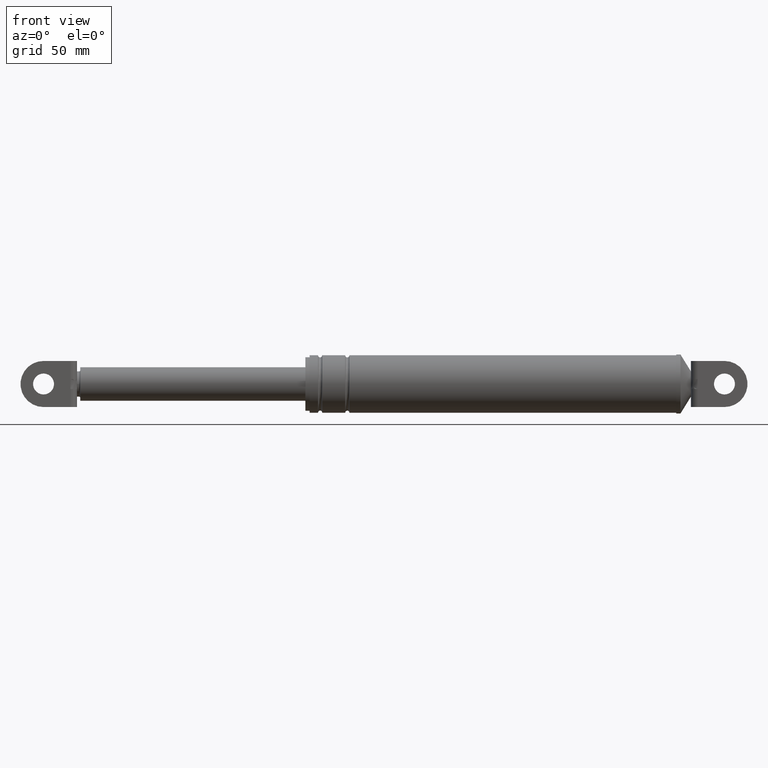
[diagram: clean part render]
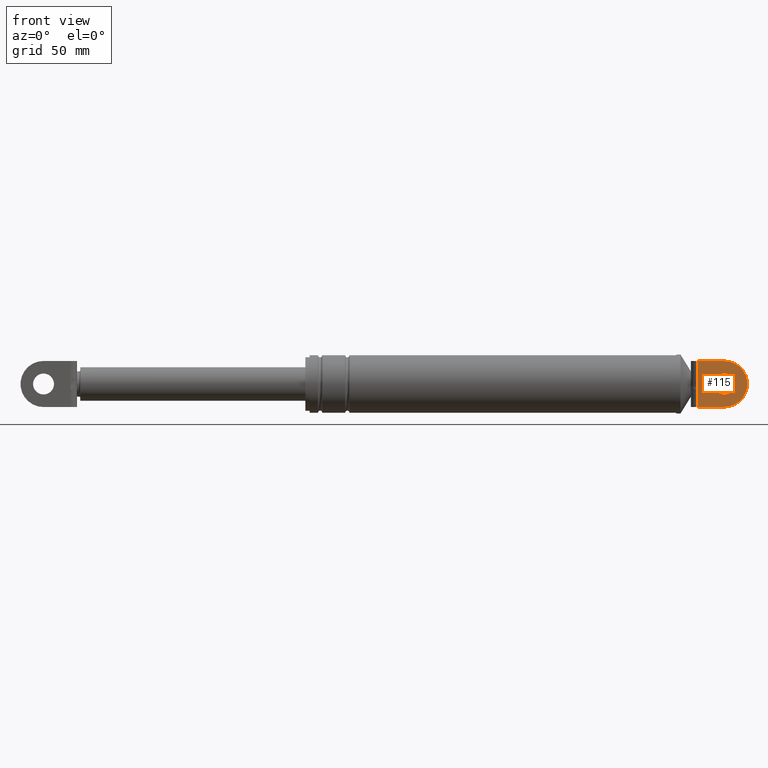
[diagram: same view with one face highlighted and labeled with its STEP entity id]
A machine part, front view. The second image highlights one B-rep face of the part: STEP entity #115.
In plain terms, the highlighted planar face has unit normal (0, 1, 0).
Its self-contained STEP definition (entity closure, byte-faithful):
#115=ADVANCED_FACE('',(#212,#213),#211,.F.);
#211=PLANE('',#952);
#212=FACE_OUTER_BOUND('',#953,.T.);
#213=FACE_BOUND('',#954,.T.);
#949=CARTESIAN_POINT('',(3.61232317116E+002,-8.69999700000E+000,1.80924634474E+002));
#950=DIRECTION('',(0.00000000000E+000,1.00000000000E+000,0.00000000000E+000));
#951=DIRECTION('',(0.00000000000E+000,0.00000000000E+000,1.00000000000E+000));
#952=AXIS2_PLACEMENT_3D('',#949,#950,#951);
#953=EDGE_LOOP('',(#1532,#1533,#1534,#1535,#1536,#1537));
#954=EDGE_LOOP('',(#1538,#1539));
#1532=ORIENTED_EDGE('',*,*,#1867,.F.);
#1533=ORIENTED_EDGE('',*,*,#1868,.T.);
#1534=ORIENTED_EDGE('',*,*,#1864,.T.);
#1535=ORIENTED_EDGE('',*,*,#1869,.T.);
#1536=ORIENTED_EDGE('',*,*,#1870,.T.);
#1537=ORIENTED_EDGE('',*,*,#1871,.T.);
#1538=ORIENTED_EDGE('',*,*,#1872,.F.);
#1539=ORIENTED_EDGE('',*,*,#1873,.F.);
#1864=EDGE_CURVE('',#2080,#2073,#2081,.T.);
#1867=EDGE_CURVE('',#2100,#2101,#2102,.T.);
#1868=EDGE_CURVE('',#2100,#2080,#2108,.T.);
#1869=EDGE_CURVE('',#2073,#2114,#2115,.T.);
#1870=EDGE_CURVE('',#2114,#2121,#2122,.T.);
#1871=EDGE_CURVE('',#2121,#2101,#2128,.T.);
#1872=EDGE_CURVE('',#2134,#2135,#2136,.T.);
#1873=EDGE_CURVE('',#2135,#2134,#2142,.T.);
#2073=VERTEX_POINT('',#3177);
#2080=VERTEX_POINT('',#3182);
#2081=(BOUNDED_CURVE() B_SPLINE_CURVE(3,(#3183,#3184,#3185,#3186,#3187,#3188,#3189,#3190,#3191,#3192),.UNSPECIFIED.,.F.,.F.) B_SPLINE_CURVE_WITH_KNOTS((4,2,2,2,4),(0.00000000000E+000,1.19890467989E-003,2.39780935978E-003,3.59671403966E-003,4.79561871955E-003),.UNSPECIFIED.) CURVE() GEOMETRIC_REPRESENTATION_ITEM() RATIONAL_B_SPLINE_CURVE((1.00000000000E+000,1.00000000000E+000,1.00000000000E+000,1.00000000000E+000,1.00000000000E+000,1.00000000000E+000,1.00000000000E+000,1.00000000000E+000,1.00000000000E+000,1.00000000000E+000)) REPRESENTATION_ITEM('') );
#2100=VERTEX_POINT('',#3202);
#2101=VERTEX_POINT('',#3203);
#2102=LINE('',#3204,#3205);
#2108=LINE('',#3207,#3208);
#2114=VERTEX_POINT('',#3210);
#2115=LINE('',#3211,#3212);
#2121=VERTEX_POINT('',#3214);
#2122=LINE('',#3215,#3216);
#2128=CIRCLE('',#3221,1.10000000000E+001);
#2134=VERTEX_POINT('',#3222);
#2135=VERTEX_POINT('',#3223);
#2136=CIRCLE('',#3227,5.00000000000E+000);
#2142=CIRCLE('',#3231,5.00000000000E+000);
#3177=CARTESIAN_POINT('',(3.63655556841E+002,-8.69999700000E+000,1.91726712983E+002));
#3182=CARTESIAN_POINT('',(3.63655556841E+002,-8.69999700000E+000,1.96522558268E+002));
#3183=CARTESIAN_POINT('',(3.63655556841E+002,-8.69999700000E+000,1.96522558268E+002));
#3184=CARTESIAN_POINT('',(3.63655556841E+002,-8.69999700000E+000,1.96122902182E+002));
#3185=CARTESIAN_POINT('',(3.63643931496E+002,-8.69999700000E+000,1.95723365822E+002));
#3186=CARTESIAN_POINT('',(3.63624072569E+002,-8.69999700000E+000,1.94924258172E+002));
#3187=CARTESIAN_POINT('',(3.63616256988E+002,-8.69999700000E+000,1.94524682576E+002));
#3188=CARTESIAN_POINT('',(3.63616248001E+002,-8.69999700000E+000,1.93725370496E+002));
#3189=CARTESIAN_POINT('',(3.63624058673E+002,-8.69999700000E+000,1.93325612289E+002));
#3190=CARTESIAN_POINT('',(3.63643922145E+002,-8.69999700000E+000,1.92526241690E+002));
#3191=CARTESIAN_POINT('',(3.63655556841E+002,-8.69999700000E+000,1.92126589111E+002));
#3192=CARTESIAN_POINT('',(3.63655556841E+002,-8.69999700000E+000,1.91726712983E+002));
#3202=CARTESIAN_POINT('',(3.63655556841E+002,-8.69999700000E+000,2.05124635626E+002));
#3203=CARTESIAN_POINT('',(3.76455555881E+002,-8.69999700000E+000,2.05124635626E+002));
#3204=CARTESIAN_POINT('',(3.63655556841E+002,-8.69999700000E+000,2.05124635626E+002));
#3205=VECTOR('',#3206,1.27999990401E+001);
#3206=DIRECTION('',(1.00000000000E+000,0.00000000000E+000,0.00000000000E+000));
#3207=CARTESIAN_POINT('',(3.63655556841E+002,-8.69999700000E+000,2.05124635626E+002));
#3208=VECTOR('',#3209,8.60207735738E+000);
#3209=DIRECTION('',(0.00000000000E+000,0.00000000000E+000,-1.00000000000E+000));
#3210=CARTESIAN_POINT('',(3.63655556841E+002,-8.69999700000E+000,1.83124635626E+002));
#3211=CARTESIAN_POINT('',(3.63655556841E+002,-8.69999700000E+000,1.91726712983E+002));
#3212=VECTOR('',#3213,8.60207735738E+000);
#3213=DIRECTION('',(0.00000000000E+000,0.00000000000E+000,-1.00000000000E+000));
#3214=CARTESIAN_POINT('',(3.76455555881E+002,-8.69999700000E+000,1.83124635626E+002));
#3215=CARTESIAN_POINT('',(3.63655556841E+002,-8.69999700000E+000,1.83124635626E+002));
#3216=VECTOR('',#3217,1.27999990401E+001);
#3217=DIRECTION('',(1.00000000000E+000,0.00000000000E+000,0.00000000000E+000));
#3218=CARTESIAN_POINT('',(3.76455556841E+002,-8.69999700000E+000,1.94124635626E+002));
#3219=DIRECTION('',(-0.00000000000E+000,-1.00000000000E+000,0.00000000000E+000));
#3220=DIRECTION('',(-8.72664570491E-008,0.00000000000E+000,1.00000000000E+000));
#3221=AXIS2_PLACEMENT_3D('',#3218,#3219,#3220);
#3222=CARTESIAN_POINT('',(3.76455556841E+002,-8.69999700000E+000,1.89124635626E+002));
#3223=CARTESIAN_POINT('',(3.76455556841E+002,-8.69999700000E+000,1.99124635626E+002));
#3224=CARTESIAN_POINT('',(3.76455556841E+002,-8.69999700000E+000,1.94124635626E+002));
#3225=DIRECTION('',(-0.00000000000E+000,-1.00000000000E+000,0.00000000000E+000));
#3226=DIRECTION('',(-1.22460635382E-016,0.00000000000E+000,1.00000000000E+000));
#3227=AXIS2_PLACEMENT_3D('',#3224,#3225,#3226);
#3228=CARTESIAN_POINT('',(3.76455556841E+002,-8.69999700000E+000,1.94124635626E+002));
#3229=DIRECTION('',(-0.00000000000E+000,-1.00000000000E+000,0.00000000000E+000));
#3230=DIRECTION('',(-1.22460635382E-016,0.00000000000E+000,1.00000000000E+000));
#3231=AXIS2_PLACEMENT_3D('',#3228,#3229,#3230);